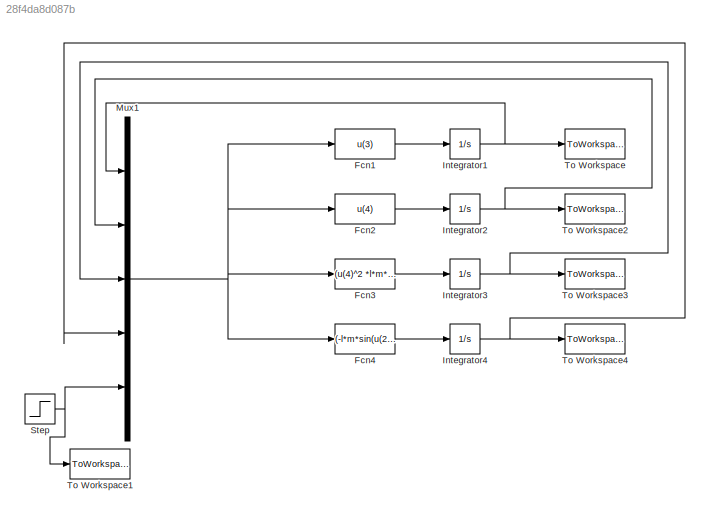
MODEL slx_28f4da8d087b
KIND model
CONFIG AbsTol = auto
CONFIG EnableMultiTasking = off
CONFIG FixedStep = auto
CONFIG MaxStep = auto
CONFIG MinStep = auto
CONFIG RelTol = 1e-3
CONFIG SampleTimeConstraint = Unconstrained
CONFIG Solver = VariableStepAuto
CONFIG SolverName = VariableStepAuto
CONFIG StartTime = 0.0
CONFIG StopTime = 10.0
WORKSPACE source: MAT-file member
WORKSPACE F = 5
BLOCK [Fcn] Fcn1
  Expr = u(3)
BLOCK [Fcn] Fcn2
  Expr = u(4)
BLOCK [Fcn] Fcn3
  Expr = (u(4)^2 *l*m*sin(u(2)) - g*m*sin(u(2))*cos(u(2)) +u(5))/(Mc+m-m*(cos(u(2))^2))
BLOCK [Fcn] Fcn4
  Expr = (-l*m*sin(u(2))*cos(u(2))*u(4)^2 + g*(Mc+m)*sin(u(2)) - cos(u(2))*u(5) )/(Mc+m-m*(cos(u(2))^2))
BLOCK [Integrator] Integrator1
  InitialCondition = x10
  Ports = [1, 1]
BLOCK [Integrator] Integrator2
  InitialCondition = x20
  Ports = [1, 1]
BLOCK [Integrator] Integrator3
  InitialCondition = x30
  Ports = [1, 1]
BLOCK [Integrator] Integrator4
  InitialCondition = x40
  Ports = [1, 1]
BLOCK [Mux] Mux1
  DisplayOption = bar
  Inputs = 5
  Ports = [5, 1]
BLOCK [Step] Step
  After = stepf
  Before = stepi
  SampleTime = 0
  Time = stept
BLOCK [ToWorkspace] To Workspace
  FixptAsFi = on
  MaxDataPoints = inf
  Ports = [1]
  SampleTime = -1
  Save2DSignal = 3-D array (concatenate along third dimension)
  VariableName = x1
BLOCK [ToWorkspace] To Workspace1
  FixptAsFi = on
  MaxDataPoints = inf
  Ports = [1]
  SampleTime = -1
  Save2DSignal = 3-D array (concatenate along third dimension)
  VariableName = Force
BLOCK [ToWorkspace] To Workspace2
  FixptAsFi = on
  MaxDataPoints = inf
  Ports = [1]
  SampleTime = -1
  Save2DSignal = 3-D array (concatenate along third dimension)
  VariableName = x2
BLOCK [ToWorkspace] To Workspace3
  FixptAsFi = on
  MaxDataPoints = inf
  Ports = [1]
  SampleTime = -1
  Save2DSignal = 3-D array (concatenate along third dimension)
  VariableName = x3
BLOCK [ToWorkspace] To Workspace4
  FixptAsFi = on
  MaxDataPoints = inf
  Ports = [1]
  SampleTime = -1
  Save2DSignal = 3-D array (concatenate along third dimension)
  VariableName = x4
LINE Fcn1:1 -> Integrator1:1
LINE Fcn2:1 -> Integrator2:1
LINE Fcn3:1 -> Integrator3:1
LINE Fcn4:1 -> Integrator4:1
NET Integrator1:1 -> Mux1:1, To Workspace:1
NET Integrator2:1 -> Mux1:2, To Workspace2:1
NET Integrator3:1 -> Mux1:3, To Workspace3:1
NET Integrator4:1 -> Mux1:4, To Workspace4:1
NET Mux1:1 -> Fcn1:1, Fcn2:1, Fcn3:1, Fcn4:1
NET Step:1 -> Mux1:5, To Workspace1:1
note: NET lines group one-source signal fan-out (src -> all destinations, sorted); 1:1 wires keep LINE
